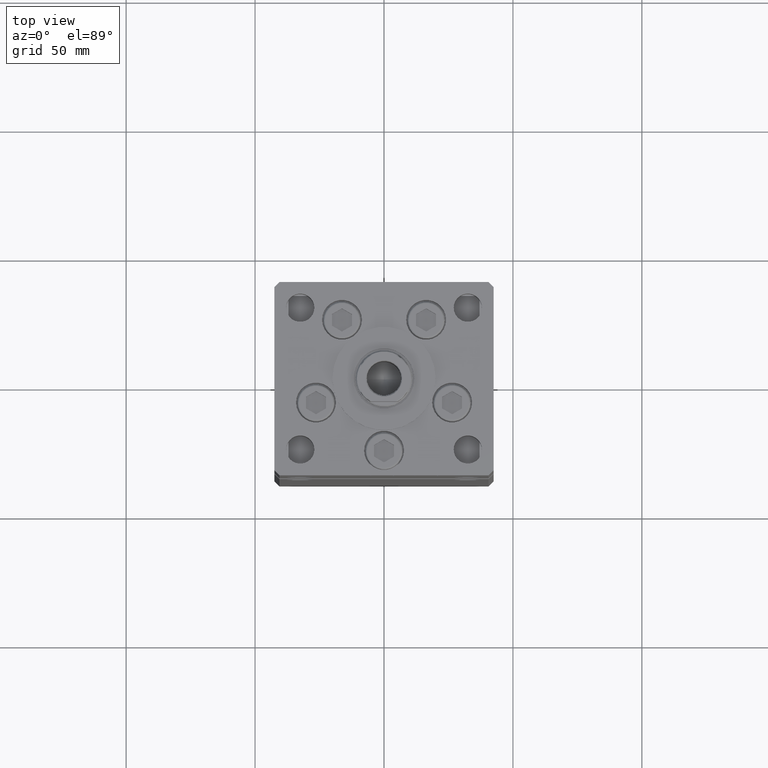
[diagram: clean part render]
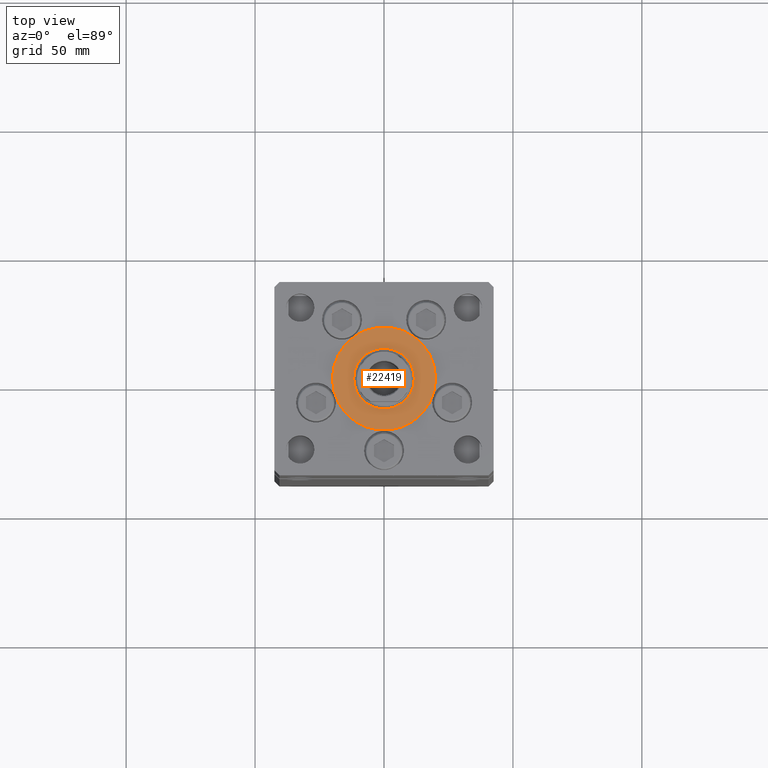
[diagram: same view with one face highlighted and labeled with its STEP entity id]
A machine part, top view. The second image highlights one B-rep face of the part: STEP entity #22419.
In plain terms, the highlighted planar face has unit normal (0, 0, 1).
Its self-contained STEP definition (entity closure, byte-faithful):
#1428 = AXIS2_PLACEMENT_3D ( 'NONE', #34944, #11036, #31190 ) ;
#2648 = VERTEX_POINT ( 'NONE', #36477 ) ;
#3217 = DIRECTION ( 'NONE',  ( 1.000000000000000000, 0.000000000000000000, 0.000000000000000000 ) ) ;
#3750 = CARTESIAN_POINT ( 'NONE',  ( 0.000000000000000000, -6.938893903907228378E-15, 2.000000000000000000 ) ) ;
#3956 = PLANE ( 'NONE',  #12046 ) ;
#4878 = CARTESIAN_POINT ( 'NONE',  ( 0.000000000000000000, -6.938893903907228378E-15, 2.000000000000000000 ) ) ;
#5160 = AXIS2_PLACEMENT_3D ( 'NONE', #4878, #37372, #42185 ) ;
#5616 = AXIS2_PLACEMENT_3D ( 'NONE', #3750, #48351, #3217 ) ;
#5699 = EDGE_CURVE ( 'NONE', #2648, #26539, #42033, .T. ) ;
#9044 = CIRCLE ( 'NONE', #5616, 11.75000000000000178 ) ;
#9870 = AXIS2_PLACEMENT_3D ( 'NONE', #17934, #38889, #46429 ) ;
#11036 = DIRECTION ( 'NONE',  ( 0.000000000000000000, 0.000000000000000000, 1.000000000000000000 ) ) ;
#11600 = VERTEX_POINT ( 'NONE', #32032 ) ;
#12046 = AXIS2_PLACEMENT_3D ( 'NONE', #36715, #53092, #16304 ) ;
#12635 = EDGE_CURVE ( 'NONE', #26539, #2648, #47757, .T. ) ;
#16304 = DIRECTION ( 'NONE',  ( 1.000000000000000000, 0.000000000000000000, -0.000000000000000000 ) ) ;
#17847 = EDGE_LOOP ( 'NONE', ( #27718, #35920 ) ) ;
#17934 = CARTESIAN_POINT ( 'NONE',  ( 0.000000000000000000, -6.938893903907228378E-15, 2.000000000000000000 ) ) ;
#20335 = FACE_BOUND ( 'NONE', #17847, .T. ) ;
#22419 = ADVANCED_FACE ( 'NONE', ( #20335, #48802 ), #3956, .T. ) ;
#23997 = EDGE_LOOP ( 'NONE', ( #52345, #28946 ) ) ;
#26539 = VERTEX_POINT ( 'NONE', #50981 ) ;
#27718 = ORIENTED_EDGE ( 'NONE', *, *, #41268, .F. ) ;
#28946 = ORIENTED_EDGE ( 'NONE', *, *, #12635, .T. ) ;
#29145 = CARTESIAN_POINT ( 'NONE',  ( -11.75000000000000178, -5.499933914909088809E-15, 2.000000000000000000 ) ) ;
#31190 = DIRECTION ( 'NONE',  ( 1.000000000000000000, 0.000000000000000000, 0.000000000000000000 ) ) ;
#32032 = CARTESIAN_POINT ( 'NONE',  ( 11.75000000000000178, -6.938893903907228378E-15, 2.000000000000000000 ) ) ;
#34944 = CARTESIAN_POINT ( 'NONE',  ( 0.000000000000000000, -6.938893903907228378E-15, 2.000000000000000000 ) ) ;
#35920 = ORIENTED_EDGE ( 'NONE', *, *, #41482, .F. ) ;
#36477 = CARTESIAN_POINT ( 'NONE',  ( -20.00000000000000000, -6.938893903907228378E-15, 2.000000000000000000 ) ) ;
#36715 = CARTESIAN_POINT ( 'NONE',  ( 0.000000000000000000, -6.938893903907228378E-15, 2.000000000000000000 ) ) ;
#37372 = DIRECTION ( 'NONE',  ( 0.000000000000000000, 0.000000000000000000, 1.000000000000000000 ) ) ;
#38889 = DIRECTION ( 'NONE',  ( 0.000000000000000000, 0.000000000000000000, 1.000000000000000000 ) ) ;
#41268 = EDGE_CURVE ( 'NONE', #11600, #51209, #9044, .T. ) ;
#41482 = EDGE_CURVE ( 'NONE', #51209, #11600, #45088, .T. ) ;
#42033 = CIRCLE ( 'NONE', #5160, 20.00000000000000000 ) ;
#42185 = DIRECTION ( 'NONE',  ( 1.000000000000000000, 0.000000000000000000, 0.000000000000000000 ) ) ;
#45088 = CIRCLE ( 'NONE', #9870, 11.75000000000000178 ) ;
#46429 = DIRECTION ( 'NONE',  ( 1.000000000000000000, 0.000000000000000000, 0.000000000000000000 ) ) ;
#47757 = CIRCLE ( 'NONE', #1428, 20.00000000000000000 ) ;
#48351 = DIRECTION ( 'NONE',  ( 0.000000000000000000, 0.000000000000000000, 1.000000000000000000 ) ) ;
#48802 = FACE_OUTER_BOUND ( 'NONE', #23997, .T. ) ;
#50981 = CARTESIAN_POINT ( 'NONE',  ( 20.00000000000000000, -4.489600305612522259E-15, 2.000000000000000000 ) ) ;
#51209 = VERTEX_POINT ( 'NONE', #29145 ) ;
#52345 = ORIENTED_EDGE ( 'NONE', *, *, #5699, .T. ) ;
#53092 = DIRECTION ( 'NONE',  ( 0.000000000000000000, 0.000000000000000000, 1.000000000000000000 ) ) ;